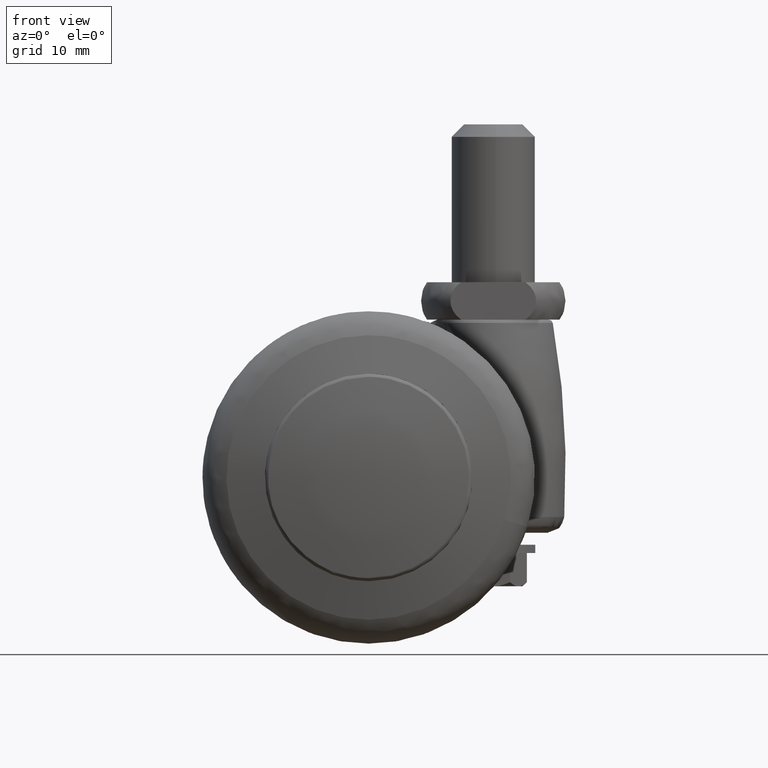
[diagram: clean part render]
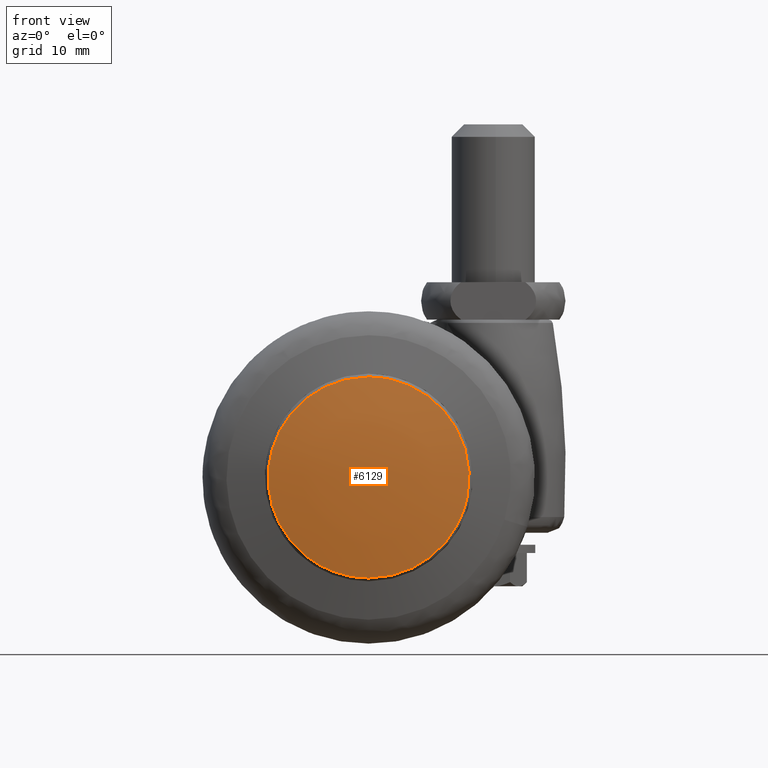
[diagram: same view with one face highlighted and labeled with its STEP entity id]
A machine part, front view. The second image highlights one B-rep face of the part: STEP entity #6129.
In plain terms, the highlighted face is a freeform B-spline surface patch.
Its self-contained STEP definition (entity closure, byte-faithful):
#4822=CARTESIAN_POINT('',(-4.306681115859561,-20.789271857879800,-11.306641018100191));
#4823=VERTEX_POINT('',#4822);
#4837=CARTESIAN_POINT('',(0.0,-20.789271858583600,12.099075719311999));
#4838=VERTEX_POINT('',#4837);
#4839=CARTESIAN_POINT('',(0.0,-20.789271858583600,12.099075719311999));
#4840=CARTESIAN_POINT('',(-12.099075719312001,-20.789271858583596,12.099075719312001));
#4841=CARTESIAN_POINT('',(-12.099075719311999,-20.789271858583600,7.177438E-016));
#4842=CARTESIAN_POINT('',(-12.099075719312003,-20.789271858583596,-8.338530623985674));
#4843=CARTESIAN_POINT('',(-4.306681115859561,-20.789271857879797,-11.306641018100198));
#4851=(BOUNDED_CURVE()B_SPLINE_CURVE(2,(#4839,#4840,#4841,#4842,#4843),.UNSPECIFIED.,.F.,.U.)B_SPLINE_CURVE_WITH_KNOTS((3,2,3),(0.0,0.250000000000000,0.439552769335489),.UNSPECIFIED.)CURVE()GEOMETRIC_REPRESENTATION_ITEM()RATIONAL_B_SPLINE_CURVE((1.0,0.707106781186547,1.0,0.777925117017299,0.892609506588403))REPRESENTATION_ITEM(''));
#4852=EDGE_CURVE('',#4838,#4823,#4851,.T.);
#4854=CARTESIAN_POINT('',(11.884767836296509,-20.789271856184989,-2.267140715986966));
#4855=VERTEX_POINT('',#4854);
#4856=CARTESIAN_POINT('',(11.884767836296515,-20.789271856184985,-2.267140715986966));
#4857=CARTESIAN_POINT('',(12.099075719311996,-20.789271858583600,-1.143699387232889));
#4858=CARTESIAN_POINT('',(12.099075719311999,-20.789271858583600,7.177438E-016));
#4859=CARTESIAN_POINT('',(12.099075719312001,-20.789271858583596,12.099075719312001));
#4860=CARTESIAN_POINT('',(0.0,-20.789271858583600,12.099075719311999));
#4868=(BOUNDED_CURVE()B_SPLINE_CURVE(2,(#4856,#4857,#4858,#4859,#4860),.UNSPECIFIED.,.F.,.U.)B_SPLINE_CURVE_WITH_KNOTS((3,2,3),(0.717838633734713,0.750000000000000,1.0),.UNSPECIFIED.)CURVE()GEOMETRIC_REPRESENTATION_ITEM()RATIONAL_B_SPLINE_CURVE((0.934335795150180,0.962320615652486,1.0,0.707106781186547,1.0))REPRESENTATION_ITEM(''));
#4869=EDGE_CURVE('',#4855,#4838,#4868,.T.);
#4914=CARTESIAN_POINT('',(0.0,-20.789271858583600,-12.099075719311999));
#4915=VERTEX_POINT('',#4914);
#4916=CARTESIAN_POINT('',(0.0,-20.789271858583600,-12.099075719311999));
#4917=CARTESIAN_POINT('',(10.009225914428955,-20.789271858583600,-12.099075719312003));
#4918=CARTESIAN_POINT('',(11.884767836296515,-20.789271856184985,-2.267140715986966));
#4926=(BOUNDED_CURVE()B_SPLINE_CURVE(2,(#4916,#4917,#4918),.UNSPECIFIED.,.F.,.U.)B_SPLINE_CURVE_WITH_KNOTS((3,3),(0.500000000000000,0.717838633734713),.UNSPECIFIED.)CURVE()GEOMETRIC_REPRESENTATION_ITEM()RATIONAL_B_SPLINE_CURVE((1.0,0.744786165534061,0.934335795150180))REPRESENTATION_ITEM(''));
#4927=EDGE_CURVE('',#4915,#4855,#4926,.T.);
#4929=CARTESIAN_POINT('',(-4.306681115859561,-20.789271857879804,-11.306641018100194));
#4930=CARTESIAN_POINT('',(-2.226245045039801,-20.789271858583600,-12.099075719312001));
#4931=CARTESIAN_POINT('',(0.0,-20.789271858583600,-12.099075719311999));
#4939=(BOUNDED_CURVE()B_SPLINE_CURVE(2,(#4929,#4930,#4931),.UNSPECIFIED.,.F.,.U.)B_SPLINE_CURVE_WITH_KNOTS((3,3),(0.439552769335489,0.500000000000000),.UNSPECIFIED.)CURVE()GEOMETRIC_REPRESENTATION_ITEM()RATIONAL_B_SPLINE_CURVE((0.892609506588403,0.929181664169248,1.0))REPRESENTATION_ITEM(''));
#4940=EDGE_CURVE('',#4823,#4915,#4939,.T.);
#6099=CARTESIAN_POINT('',(-13.122970745871967,-19.111251170125851,-13.123082165053022));
#6100=CARTESIAN_POINT('',(-6.640019879355640,-20.538325438287561,-13.280152511469977));
#6101=CARTESIAN_POINT('',(6.639574671235844,-20.538325438287561,-13.280152511469977));
#6102=CARTESIAN_POINT('',(13.122111672516022,-19.111440269104111,-13.123102978154822));
#6103=CARTESIAN_POINT('',(-13.280042457801821,-20.538349961283089,-6.640077605291731));
#6104=CARTESIAN_POINT('',(-6.720458503196920,-22.000000000000071,-6.720515562531809));
#6105=CARTESIAN_POINT('',(6.720007901730549,-22.000000000000071,-6.720515562531809));
#6106=CARTESIAN_POINT('',(13.279173354088334,-20.538543614089960,-6.640088262450274));
#6107=CARTESIAN_POINT('',(-13.280042457801821,-20.538349961283089,6.640077009669982));
#6108=CARTESIAN_POINT('',(-6.720458503196920,-22.000000000000071,6.720514959694693));
#6109=CARTESIAN_POINT('',(6.720007901730549,-22.000000000000071,6.720514959694693));
#6110=CARTESIAN_POINT('',(13.279173354088334,-20.538543614089960,6.640087666827569));
#6111=CARTESIAN_POINT('',(-13.122970773717666,-19.111251423122120,13.123081015745070));
#6112=CARTESIAN_POINT('',(-6.640019893613762,-20.538325697376280,13.280151348743207));
#6113=CARTESIAN_POINT('',(6.639574685493010,-20.538325697376280,13.280151348743207));
#6114=CARTESIAN_POINT('',(13.122111700359943,-19.111440522101187,13.123101828845092));
#6122=(BOUNDED_SURFACE()B_SPLINE_SURFACE(2,2,((#6099,#6103,#6107,#6111),(#6100,#6104,#6108,#6112),(#6101,#6105,#6109,#6113),(#6102,#6106,#6110,#6114)),.UNSPECIFIED.,.F.,.F.,.U.)B_SPLINE_SURFACE_WITH_KNOTS((3,1,3),(3,1,3),(16.112522410774229,29.158699620777220,42.204002094841002),(16.112411643600460,29.158699620777210,42.204986427688603),.UNSPECIFIED.)GEOMETRIC_REPRESENTATION_ITEM()RATIONAL_B_SPLINE_SURFACE(((1.024228222913768,1.012114008603751,1.012114008603751,1.024228220740453),(1.012114214310016,1.0,1.0,1.012114212136702),(1.012114214310016,1.0,1.0,1.012114212136702),(1.024226598498696,1.012112384188679,1.012112384188679,1.024226596325381)))REPRESENTATION_ITEM('')SURFACE());
#6123=ORIENTED_EDGE('',*,*,#4852,.T.);
#6124=ORIENTED_EDGE('',*,*,#4940,.T.);
#6125=ORIENTED_EDGE('',*,*,#4927,.T.);
#6126=ORIENTED_EDGE('',*,*,#4869,.T.);
#6127=EDGE_LOOP('',(#6123,#6124,#6125,#6126));
#6128=FACE_OUTER_BOUND('',#6127,.T.);
#6129=ADVANCED_FACE('',(#6128),#6122,.T.);